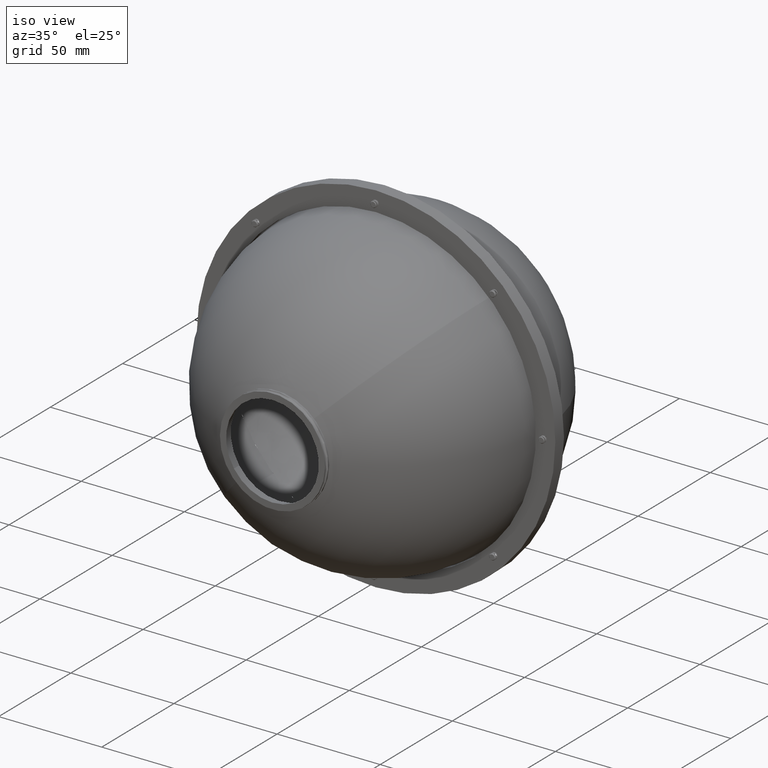
[diagram: clean part render]
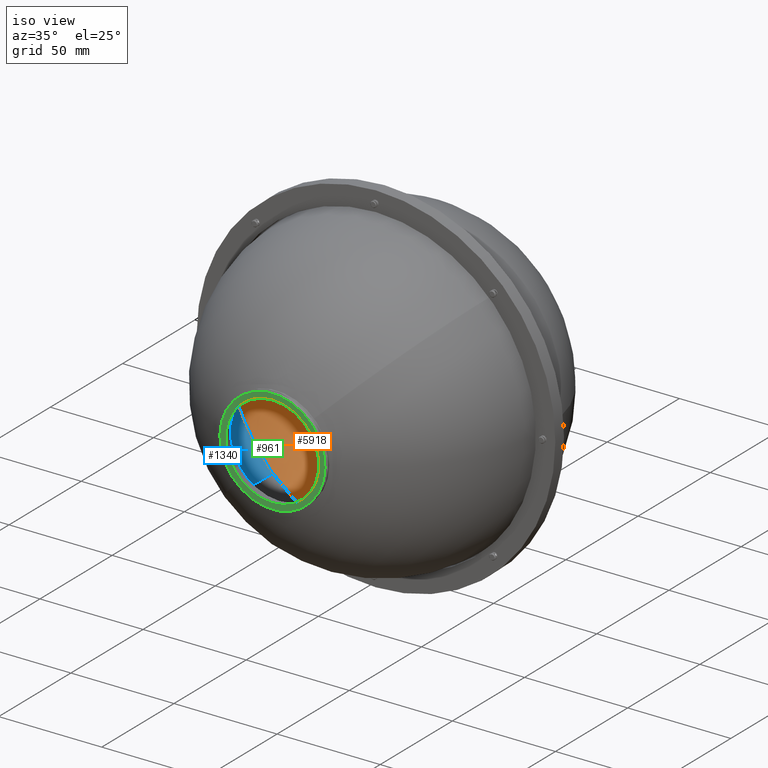
[diagram: same view with three faces highlighted in distinct colors, each labeled with its STEP entity id]
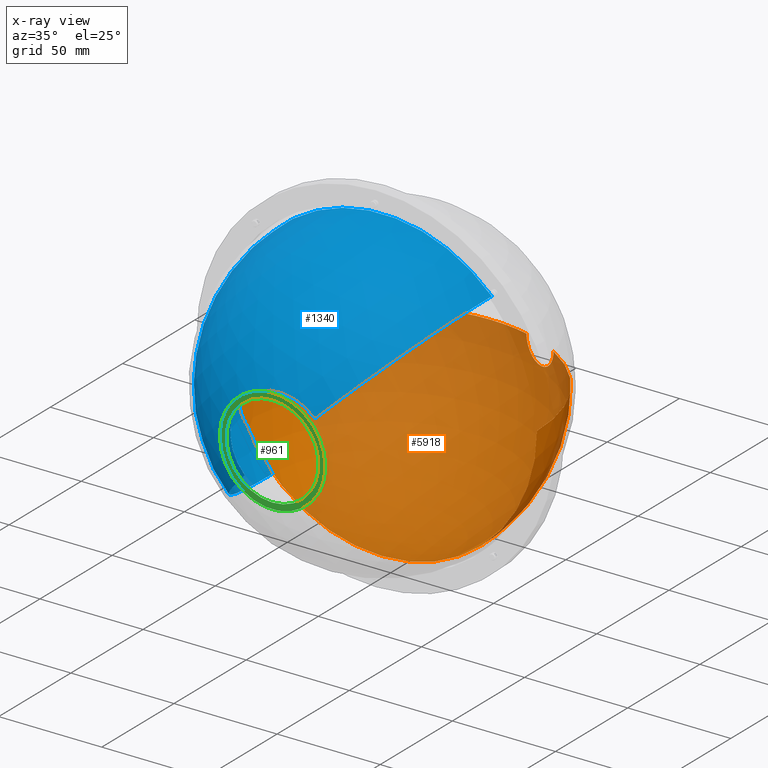
[diagram: x-ray of the same camera — body ghosted, the three highlighted faces saturated]
A machine part, iso view with three faces highlighted in distinct colors.
The next image is the same camera in x-ray (body ghosted, the three faces saturated) — at least one of them is partly hidden behind the body in this view.
Their STEP definitions:

[orange] entity #5918 — the highlighted spherical surface has radius 75 mm.
#110 = VERTEX_POINT ( 'NONE', #6607 ) ;
#220 = VERTEX_POINT ( 'NONE', #4191 ) ;
#414 = DIRECTION ( 'NONE',  ( 0.9238795325112864054, -0.3826834323650907255, 0.000000000000000000 ) ) ;
#510 = CIRCLE ( 'NONE', #2926, 75.00000000000000000 ) ;
#545 = CIRCLE ( 'NONE', #7638, 75.00000000000000000 ) ;
#577 = CIRCLE ( 'NONE', #2352, 75.00000000000000000 ) ;
#720 = ORIENTED_EDGE ( 'NONE', *, *, #4261, .F. ) ;
#791 = CARTESIAN_POINT ( 'NONE',  ( 46.16780534471740083, 46.93458301193123816, 0.000000000000000000 ) ) ;
#936 = DIRECTION ( 'NONE',  ( 1.224646799147353207E-16, -0.000000000000000000, 1.000000000000000000 ) ) ;
#994 = VERTEX_POINT ( 'NONE', #6114 ) ;
#997 = DIRECTION ( 'NONE',  ( 0.000000000000000000, 0.000000000000000000, 1.000000000000000000 ) ) ;
#1082 = DIRECTION ( 'NONE',  ( -1.000000000000000000, 0.000000000000000000, 0.000000000000000000 ) ) ;
#1119 = ORIENTED_EDGE ( 'NONE', *, *, #4427, .F. ) ;
#1300 = EDGE_CURVE ( 'NONE', #220, #4921, #545, .T. ) ;
#1417 = CIRCLE ( 'NONE', #6996, 75.00000000000000000 ) ;
#1520 = AXIS2_PLACEMENT_3D ( 'NONE', #5888, #997, #6522 ) ;
#1555 = DIRECTION ( 'NONE',  ( -0.000000000000000000, -1.000000000000000000, -0.000000000000000000 ) ) ;
#2019 = AXIS2_PLACEMENT_3D ( 'NONE', #5863, #7185, #414 ) ;
#2087 = EDGE_CURVE ( 'NONE', #994, #220, #510, .T. ) ;
#2352 = AXIS2_PLACEMENT_3D ( 'NONE', #3547, #2424, #1082 ) ;
#2424 = DIRECTION ( 'NONE',  ( 0.000000000000000000, 0.000000000000000000, -1.000000000000000000 ) ) ;
#2506 = DIRECTION ( 'NONE',  ( 0.3826834323650840641, -0.9238795325112891810, -0.000000000000000000 ) ) ;
#2600 = CARTESIAN_POINT ( 'NONE',  ( 8.484018949608307381, -17.91086588718419748, 0.000000000000000000 ) ) ;
#2659 = CARTESIAN_POINT ( 'NONE',  ( 8.484018949608312710, 57.08913411281579897, 0.000000000000000000 ) ) ;
#2688 = DIRECTION ( 'NONE',  ( 1.000000000000000000, 0.000000000000000000, -1.224646799147353207E-16 ) ) ;
#2713 = EDGE_CURVE ( 'NONE', #3378, #4921, #1417, .T. ) ;
#2926 = AXIS2_PLACEMENT_3D ( 'NONE', #3714, #4316, #3167 ) ;
#3103 = AXIS2_PLACEMENT_3D ( 'NONE', #6192, #2506, #5486 ) ;
#3167 = DIRECTION ( 'NONE',  ( 1.000000000000000000, 0.000000000000000000, -1.224646799147353207E-16 ) ) ;
#3317 = VERTEX_POINT ( 'NONE', #2659 ) ;
#3370 = CARTESIAN_POINT ( 'NONE',  ( 8.484018949608307381, -17.91086588718419748, 0.000000000000000000 ) ) ;
#3378 = VERTEX_POINT ( 'NONE', #791 ) ;
#3547 = CARTESIAN_POINT ( 'NONE',  ( 8.484018949608307381, -17.91086588718419748, 0.000000000000000000 ) ) ;
#3552 = SPHERICAL_SURFACE ( 'NONE', #1520, 75.00000000000000000 ) ;
#3714 = CARTESIAN_POINT ( 'NONE',  ( 8.484018949608307381, -17.91086588718419748, 0.000000000000000000 ) ) ;
#3910 = DIRECTION ( 'NONE',  ( -1.000000000000000000, 0.000000000000000000, 0.000000000000000000 ) ) ;
#4191 = CARTESIAN_POINT ( 'NONE',  ( -66.51598105039168729, -17.91086588718419748, 9.184850993605148733E-15 ) ) ;
#4249 = CIRCLE ( 'NONE', #3103, 10.00000000000000533 ) ;
#4261 = EDGE_CURVE ( 'NONE', #3317, #6289, #577, .T. ) ;
#4316 = DIRECTION ( 'NONE',  ( 1.224646799147353207E-16, -0.000000000000000000, 1.000000000000000000 ) ) ;
#4427 = EDGE_CURVE ( 'NONE', #994, #110, #4249, .T. ) ;
#4462 = CARTESIAN_POINT ( 'NONE',  ( 27.69021469449169714, 54.58825165923303047, 0.000000000000000000 ) ) ;
#4803 = AXIS2_PLACEMENT_3D ( 'NONE', #3370, #936, #2688 ) ;
#4921 = VERTEX_POINT ( 'NONE', #7526 ) ;
#5198 = CARTESIAN_POINT ( 'NONE',  ( 8.484018949608307381, -17.91086588718419748, 0.000000000000000000 ) ) ;
#5293 = FACE_OUTER_BOUND ( 'NONE', #5799, .T. ) ;
#5471 = EDGE_CURVE ( 'NONE', #3317, #110, #5695, .T. ) ;
#5486 = DIRECTION ( 'NONE',  ( 0.9238795325112891810, 0.3826834323650841196, 0.000000000000000000 ) ) ;
#5695 = CIRCLE ( 'NONE', #4803, 75.00000000000000000 ) ;
#5698 = DIRECTION ( 'NONE',  ( 0.000000000000000000, 0.000000000000000000, -1.000000000000000000 ) ) ;
#5712 = EDGE_CURVE ( 'NONE', #3378, #6289, #7465, .T. ) ;
#5798 = DIRECTION ( 'NONE',  ( 0.000000000000000000, 0.000000000000000000, -1.000000000000000000 ) ) ;
#5799 = EDGE_LOOP ( 'NONE', ( #720, #7480, #1119, #7355, #7719, #7624, #6377 ) ) ;
#5863 = CARTESIAN_POINT ( 'NONE',  ( 36.92901001960455432, 50.76141733558213787, 0.000000000000000000 ) ) ;
#5888 = CARTESIAN_POINT ( 'NONE',  ( 8.484018949608307381, -17.91086588718419748, 0.000000000000000000 ) ) ;
#5918 = ADVANCED_FACE ( 'NONE', ( #5293 ), #3552, .F. ) ;
#6114 = CARTESIAN_POINT ( 'NONE',  ( -29.19976744550031000, 46.93458301193152238, 4.614932838852234709E-15 ) ) ;
#6192 = CARTESIAN_POINT ( 'NONE',  ( -19.96097212038744928, 50.76141733558234392, 0.000000000000000000 ) ) ;
#6289 = VERTEX_POINT ( 'NONE', #4462 ) ;
#6377 = ORIENTED_EDGE ( 'NONE', *, *, #5712, .T. ) ;
#6522 = DIRECTION ( 'NONE',  ( 1.000000000000000000, 0.000000000000000000, 0.000000000000000000 ) ) ;
#6607 = CARTESIAN_POINT ( 'NONE',  ( -10.72217679527459211, 54.58825165923316547, 2.352080614276835470E-15 ) ) ;
#6996 = AXIS2_PLACEMENT_3D ( 'NONE', #2600, #5698, #3910 ) ;
#7185 = DIRECTION ( 'NONE',  ( 0.3826834323650906700, 0.9238795325112866275, 0.000000000000000000 ) ) ;
#7355 = ORIENTED_EDGE ( 'NONE', *, *, #2087, .T. ) ;
#7465 = CIRCLE ( 'NONE', #2019, 9.999999999999996447 ) ;
#7480 = ORIENTED_EDGE ( 'NONE', *, *, #5471, .T. ) ;
#7526 = CARTESIAN_POINT ( 'NONE',  ( 83.48401894960829850, -17.91086588718419748, 0.000000000000000000 ) ) ;
#7624 = ORIENTED_EDGE ( 'NONE', *, *, #2713, .F. ) ;
#7638 = AXIS2_PLACEMENT_3D ( 'NONE', #5198, #1555, #5798 ) ;
#7719 = ORIENTED_EDGE ( 'NONE', *, *, #1300, .T. ) ;

[blue] entity #1340 — the highlighted spherical surface has radius 75 mm.
#408 = AXIS2_PLACEMENT_3D ( 'NONE', #4681, #4608, #7030 ) ;
#488 = VERTEX_POINT ( 'NONE', #3543 ) ;
#611 = ORIENTED_EDGE ( 'NONE', *, *, #3974, .F. ) ;
#774 = EDGE_CURVE ( 'NONE', #488, #6200, #7786, .T. ) ;
#1071 = FACE_OUTER_BOUND ( 'NONE', #5581, .T. ) ;
#1340 = ADVANCED_FACE ( 'NONE', ( #1071 ), #6351, .F. ) ;
#1426 = VERTEX_POINT ( 'NONE', #1749 ) ;
#1451 = AXIS2_PLACEMENT_3D ( 'NONE', #6080, #1920, #6241 ) ;
#1749 = CARTESIAN_POINT ( 'NONE',  ( -44.54898963938187961, -17.71086588718419819, -53.03300858899163472 ) ) ;
#1920 = DIRECTION ( 'NONE',  ( 0.7071067811865587860, 0.000000000000000000, -0.7071067811865364705 ) ) ;
#2103 = DIRECTION ( 'NONE',  ( -0.7071067811865586750, 0.000000000000000000, 0.7071067811865365815 ) ) ;
#2648 = ORIENTED_EDGE ( 'NONE', *, *, #774, .F. ) ;
#2739 = CARTESIAN_POINT ( 'NONE',  ( 8.484018949608364224, -88.76718158114626078, 2.914335439641035919E-13 ) ) ;
#3097 = CIRCLE ( 'NONE', #1451, 75.00000000000000000 ) ;
#3311 = CARTESIAN_POINT ( 'NONE',  ( 61.51702753859862582, -17.71086588718419819, 53.03300858899221026 ) ) ;
#3373 = DIRECTION ( 'NONE',  ( -0.7071067811865584529, 0.000000000000000000, 0.7071067811865364705 ) ) ;
#3543 = CARTESIAN_POINT ( 'NONE',  ( -8.486543798868586563, -88.76718158114626078, -16.97056274847719592 ) ) ;
#3960 = DIRECTION ( 'NONE',  ( 0.7071067811865364705, 0.000000000000000000, 0.7071067811865584529 ) ) ;
#3974 = EDGE_CURVE ( 'NONE', #7228, #1426, #5656, .T. ) ;
#4041 = CARTESIAN_POINT ( 'NONE',  ( 8.484018949608364224, -17.71086588718419819, 2.914335439641035919E-13 ) ) ;
#4608 = DIRECTION ( 'NONE',  ( 0.7071067811865584529, 0.000000000000000000, -0.7071067811865364705 ) ) ;
#4676 = DIRECTION ( 'NONE',  ( 0.000000000000000000, 1.000000000000000000, 0.000000000000000000 ) ) ;
#4681 = CARTESIAN_POINT ( 'NONE',  ( 8.484018949608364224, -17.71086588718419819, 2.914335439641035919E-13 ) ) ;
#5524 = AXIS2_PLACEMENT_3D ( 'NONE', #6021, #6290, #7809 ) ;
#5540 = EDGE_CURVE ( 'NONE', #6200, #7228, #6698, .T. ) ;
#5581 = EDGE_LOOP ( 'NONE', ( #2648, #6106, #611, #6169 ) ) ;
#5656 = CIRCLE ( 'NONE', #5524, 75.00000000000005684 ) ;
#5941 = AXIS2_PLACEMENT_3D ( 'NONE', #4041, #2103, #3960 ) ;
#6021 = CARTESIAN_POINT ( 'NONE',  ( 8.484018949608364224, -17.71086588718419819, 2.914335439641035919E-13 ) ) ;
#6080 = CARTESIAN_POINT ( 'NONE',  ( 8.484018949608364224, -17.71086588718419819, 2.914335439641035919E-13 ) ) ;
#6106 = ORIENTED_EDGE ( 'NONE', *, *, #6843, .T. ) ;
#6169 = ORIENTED_EDGE ( 'NONE', *, *, #5540, .F. ) ;
#6200 = VERTEX_POINT ( 'NONE', #7644 ) ;
#6241 = DIRECTION ( 'NONE',  ( -0.7071067811865362485, 0.000000000000000000, -0.7071067811865587860 ) ) ;
#6290 = DIRECTION ( 'NONE',  ( -0.000000000000000000, -1.000000000000000000, -0.000000000000000000 ) ) ;
#6351 = SPHERICAL_SURFACE ( 'NONE', #408, 75.00000000000000000 ) ;
#6517 = AXIS2_PLACEMENT_3D ( 'NONE', #2739, #4676, #3373 ) ;
#6698 = CIRCLE ( 'NONE', #5941, 75.00000000000001421 ) ;
#6843 = EDGE_CURVE ( 'NONE', #488, #1426, #3097, .T. ) ;
#7030 = DIRECTION ( 'NONE',  ( 0.7071067811865365815, 0.000000000000000000, 0.7071067811865585639 ) ) ;
#7228 = VERTEX_POINT ( 'NONE', #3311 ) ;
#7644 = CARTESIAN_POINT ( 'NONE',  ( 25.45458169808531679, -88.76718158114626078, 16.97056274847777502 ) ) ;
#7786 = CIRCLE ( 'NONE', #6517, 24.00000000000002487 ) ;
#7809 = DIRECTION ( 'NONE',  ( -0.7071067811865585639, 0.000000000000000000, 0.7071067811865363595 ) ) ;

[green] entity #961 — the highlighted planar face has unit normal (0, -1, 0).
#143 = DIRECTION ( 'NONE',  ( -0.5601244992206466655, 0.000000000000000000, 0.8284084411525631797 ) ) ;
#483 = EDGE_LOOP ( 'NONE', ( #3334, #3911 ) ) ;
#738 = DIRECTION ( 'NONE',  ( -5.669000466407254622E-17, -1.000000000000000000, 1.363500086818490346E-16 ) ) ;
#930 = AXIS2_PLACEMENT_3D ( 'NONE', #6176, #738, #143 ) ;
#960 = FACE_OUTER_BOUND ( 'NONE', #1221, .T. ) ;
#961 = ADVANCED_FACE ( 'NONE', ( #1563, #960 ), #7625, .T. ) ;
#1090 = VERTEX_POINT ( 'NONE', #1800 ) ;
#1207 = DIRECTION ( 'NONE',  ( -0.8284084411525634017, 1.233581138472395915E-15, -0.5601244992206464435 ) ) ;
#1221 = EDGE_LOOP ( 'NONE', ( #6244, #6101 ) ) ;
#1563 = FACE_BOUND ( 'NONE', #483, .T. ) ;
#1607 = DIRECTION ( 'NONE',  ( 1.641652434214198414E-17, -1.000000000000000000, 2.822750053164587856E-17 ) ) ;
#1800 = CARTESIAN_POINT ( 'NONE',  ( 22.76719367973484864, -93.87506478254557862, -21.12441524939006854 ) ) ;
#1801 = CARTESIAN_POINT ( 'NONE',  ( 27.12320887554103876, -93.87506478254563547, 12.60280123246484152 ) ) ;
#1941 = CIRCLE ( 'NONE', #3079, 22.50000000000000355 ) ;
#2188 = CARTESIAN_POINT ( 'NONE',  ( 8.484018949608364224, -93.87506478254557862, 2.917696350218405662E-13 ) ) ;
#2465 = CIRCLE ( 'NONE', #930, 25.50000000000001066 ) ;
#2489 = DIRECTION ( 'NONE',  ( -0.8284084411525634017, 1.233581138472395915E-15, -0.5601244992206464435 ) ) ;
#3077 = CARTESIAN_POINT ( 'NONE',  ( -10.15517097632431387, -93.87506478254557862, -12.60280123246425710 ) ) ;
#3079 = AXIS2_PLACEMENT_3D ( 'NONE', #6250, #5028, #2489 ) ;
#3175 = DIRECTION ( 'NONE',  ( -0.5601244992206466655, 0.000000000000000000, 0.8284084411525631797 ) ) ;
#3334 = ORIENTED_EDGE ( 'NONE', *, *, #7023, .T. ) ;
#3481 = CIRCLE ( 'NONE', #5002, 25.50000000000001066 ) ;
#3596 = AXIS2_PLACEMENT_3D ( 'NONE', #4101, #7120, #1207 ) ;
#3750 = VERTEX_POINT ( 'NONE', #6367 ) ;
#3911 = ORIENTED_EDGE ( 'NONE', *, *, #7327, .T. ) ;
#4101 = CARTESIAN_POINT ( 'NONE',  ( 8.484018949608364224, -93.87506478254560704, 2.917696350218405662E-13 ) ) ;
#4728 = CIRCLE ( 'NONE', #3596, 22.50000000000000355 ) ;
#4858 = AXIS2_PLACEMENT_3D ( 'NONE', #2188, #1607, #7675 ) ;
#4917 = DIRECTION ( 'NONE',  ( -5.669000466407254622E-17, -1.000000000000000000, 1.363500086818490346E-16 ) ) ;
#5002 = AXIS2_PLACEMENT_3D ( 'NONE', #6820, #4917, #3175 ) ;
#5028 = DIRECTION ( 'NONE',  ( 1.183795550205016903E-15, 1.000000000000000000, 6.257371429007453918E-16 ) ) ;
#5179 = EDGE_CURVE ( 'NONE', #1090, #3750, #2465, .T. ) ;
#5330 = EDGE_CURVE ( 'NONE', #3750, #1090, #3481, .T. ) ;
#6101 = ORIENTED_EDGE ( 'NONE', *, *, #5330, .T. ) ;
#6113 = VERTEX_POINT ( 'NONE', #1801 ) ;
#6176 = CARTESIAN_POINT ( 'NONE',  ( 8.484018949608364224, -93.87506478254557862, 2.917696350218405662E-13 ) ) ;
#6244 = ORIENTED_EDGE ( 'NONE', *, *, #5179, .T. ) ;
#6250 = CARTESIAN_POINT ( 'NONE',  ( 8.484018949608364224, -93.87506478254560704, 2.917696350218405662E-13 ) ) ;
#6367 = CARTESIAN_POINT ( 'NONE',  ( -5.799155780518128189, -93.87506478254557862, 21.12441524939064763 ) ) ;
#6820 = CARTESIAN_POINT ( 'NONE',  ( 8.484018949608364224, -93.87506478254557862, 2.917696350218405662E-13 ) ) ;
#7023 = EDGE_CURVE ( 'NONE', #7148, #6113, #1941, .T. ) ;
#7120 = DIRECTION ( 'NONE',  ( 1.183795550205016903E-15, 1.000000000000000000, 6.257371429007453918E-16 ) ) ;
#7148 = VERTEX_POINT ( 'NONE', #3077 ) ;
#7327 = EDGE_CURVE ( 'NONE', #6113, #7148, #4728, .T. ) ;
#7625 = PLANE ( 'NONE',  #4858 ) ;
#7675 = DIRECTION ( 'NONE',  ( -0.5601244992206466655, 1.418860223696807890E-17, 0.8284084411525632907 ) ) ;